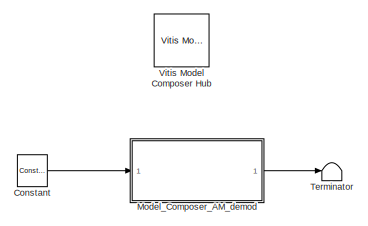
[diagram: root canvas - part 1/2, top left region]
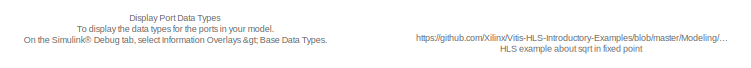
[diagram: root canvas - part 2/2, bottom right region]
MODEL slx_336abc414fbb
KIND model
CONFIG AbsTol = auto
CONFIG EnableMultiTasking = off
CONFIG FixedStep = auto
CONFIG MaxStep = auto
CONFIG MinStep = auto
CONFIG RelTol = 1e-3
CONFIG SampleTimeConstraint = Unconstrained
CONFIG SolverName = VariableStepAuto
CONFIG StartTime = 0.0
CONFIG StopTime = 20
BLOCK [Reference] Constant  REF=hlsBasic/Constant
  Ports = [0, 1]
  SourceBlock = hlsBasic/Constant
  SourceType = Constant
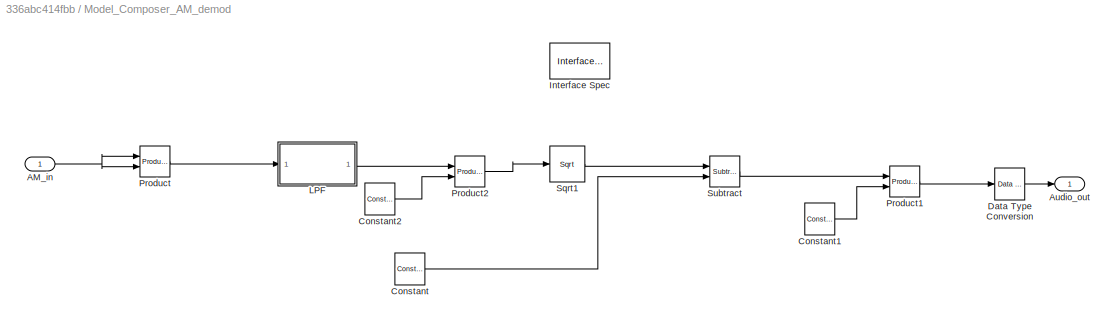
BLOCK [SubSystem] Model_Composer_AM_demod
  Ports = [1, 1]
  RequestExecContextInheritance = off
BLOCK [Inport] Model_Composer_AM_demod/AM_in
BLOCK [Outport] Model_Composer_AM_demod/Audio_out
BLOCK [Reference] Model_Composer_AM_demod/Constant  REF=hlsBasic/Constant
  Ports = [0, 1]
  SourceBlock = hlsBasic/Constant
  SourceType = Constant
BLOCK [Reference] Model_Composer_AM_demod/Constant1  REF=hlsBasic/Constant
  Ports = [0, 1]
  SourceBlock = hlsBasic/Constant
  SourceType = Constant
BLOCK [Reference] Model_Composer_AM_demod/Constant2  REF=hlsBasic/Constant
  Ports = [0, 1]
  SourceBlock = hlsBasic/Constant
  SourceType = Constant
BLOCK [Reference] Model_Composer_AM_demod/Data Type Conversion  REF=hlsBasic/Data Type Conversion
  Ports = [1, 1]
  SourceBlock = hlsBasic/Data Type Conversion
  SourceType = DTC
BLOCK [Reference] Model_Composer_AM_demod/Interface Spec  REF=hlsUtilities/Interface Spec
  Ports = []
  SourceBlock = hlsUtilities/Interface Spec
  SourceType = Interface Specification
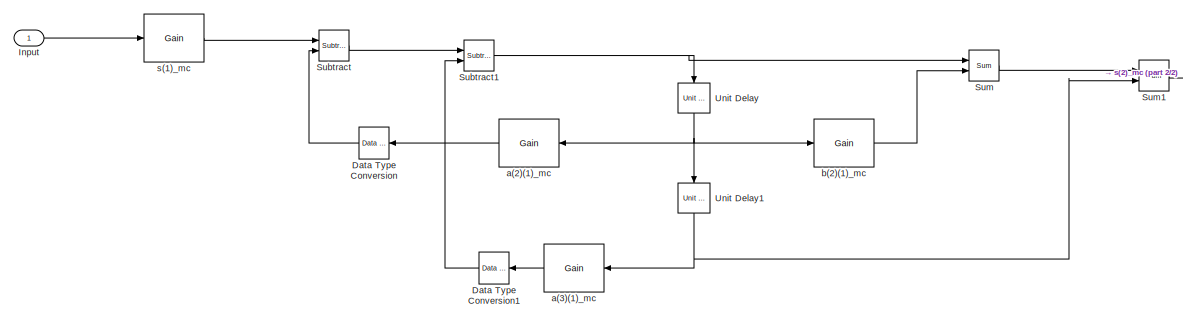
[diagram: Model_Composer_AM_demod/LPF - part 1/2, middle left region]
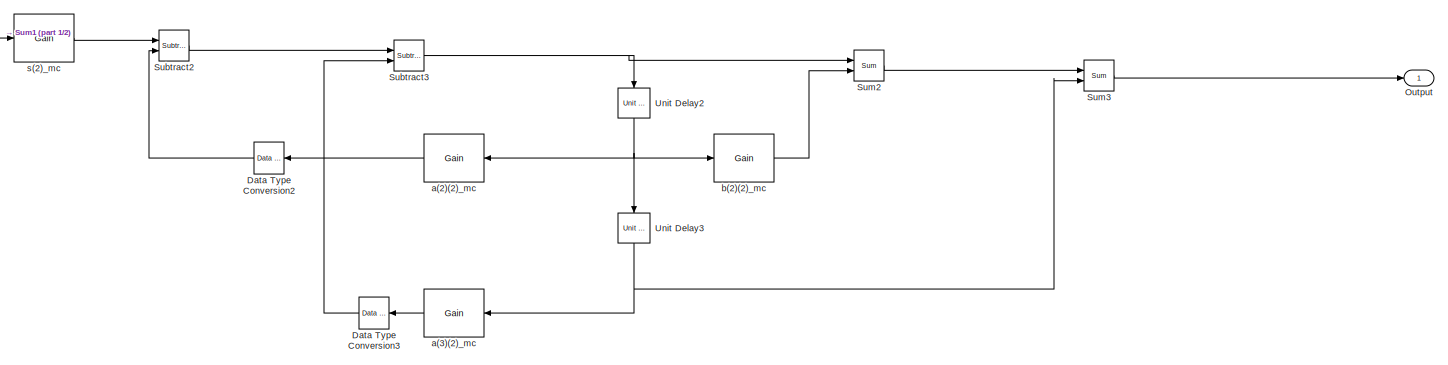
[diagram: Model_Composer_AM_demod/LPF - part 2/2, right side, full height]
BLOCK [SubSystem] Model_Composer_AM_demod/LPF
  ErrorFcn = dspFilterRealizedInBasicElemsAlgLoopErrFcnCallback
  Ports = [1, 1]
  RequestExecContextInheritance = off
  Tag = FilterWizardSubSystem
  UserDataPersistent = on
BLOCK [Reference] Model_Composer_AM_demod/LPF/Data Type Conversion  REF=hlsBasic/Data Type Conversion
  NameLocation = top
  Ports = [1, 1]
  SourceBlock = hlsBasic/Data Type Conversion
  SourceType = DTC
BLOCK [Reference] Model_Composer_AM_demod/LPF/Data Type Conversion1  REF=hlsBasic/Data Type Conversion
  NameLocation = top
  Ports = [1, 1]
  SourceBlock = hlsBasic/Data Type Conversion
  SourceType = DTC
BLOCK [Reference] Model_Composer_AM_demod/LPF/Data Type Conversion2  REF=hlsBasic/Data Type Conversion
  NameLocation = top
  Ports = [1, 1]
  SourceBlock = hlsBasic/Data Type Conversion
  SourceType = DTC
BLOCK [Reference] Model_Composer_AM_demod/LPF/Data Type Conversion3  REF=hlsBasic/Data Type Conversion
  NameLocation = top
  Ports = [1, 1]
  SourceBlock = hlsBasic/Data Type Conversion
  SourceType = DTC
BLOCK [Inport] Model_Composer_AM_demod/LPF/Input
BLOCK [Outport] Model_Composer_AM_demod/LPF/Output
BLOCK [Reference] Model_Composer_AM_demod/LPF/Subtract  REF=hlsBasic/Subtract
  Ports = [2, 1]
  SourceBlock = hlsBasic/Subtract
  SourceType = Subtract
BLOCK [Reference] Model_Composer_AM_demod/LPF/Subtract1  REF=hlsBasic/Subtract
  Ports = [2, 1]
  SourceBlock = hlsBasic/Subtract
  SourceType = Subtract
BLOCK [Reference] Model_Composer_AM_demod/LPF/Subtract2  REF=hlsBasic/Subtract
  Ports = [2, 1]
  SourceBlock = hlsBasic/Subtract
  SourceType = Subtract
BLOCK [Reference] Model_Composer_AM_demod/LPF/Subtract3  REF=hlsBasic/Subtract
  Ports = [2, 1]
  SourceBlock = hlsBasic/Subtract
  SourceType = Subtract
BLOCK [Reference] Model_Composer_AM_demod/LPF/Sum  REF=hlsBasic/Sum
  Ports = [2, 1]
  SourceBlock = hlsBasic/Sum
  SourceType = Sum
BLOCK [Reference] Model_Composer_AM_demod/LPF/Sum1  REF=hlsBasic/Sum
  Ports = [2, 1]
  SourceBlock = hlsBasic/Sum
  SourceType = Sum
BLOCK [Reference] Model_Composer_AM_demod/LPF/Sum2  REF=hlsBasic/Sum
  Ports = [2, 1]
  SourceBlock = hlsBasic/Sum
  SourceType = Sum
BLOCK [Reference] Model_Composer_AM_demod/LPF/Sum3  REF=hlsBasic/Sum
  Ports = [2, 1]
  SourceBlock = hlsBasic/Sum
  SourceType = Sum
BLOCK [Reference] Model_Composer_AM_demod/LPF/Unit Delay  REF=hlsBasic/Unit Delay
  NameLocation = left
  Ports = [1, 1]
  SourceBlock = hlsBasic/Unit Delay
  SourceType = Unit Delay
BLOCK [Reference] Model_Composer_AM_demod/LPF/Unit Delay1  REF=hlsBasic/Unit Delay
  NameLocation = left
  Ports = [1, 1]
  SourceBlock = hlsBasic/Unit Delay
  SourceType = Unit Delay
BLOCK [Reference] Model_Composer_AM_demod/LPF/Unit Delay2  REF=hlsBasic/Unit Delay
  NameLocation = left
  Ports = [1, 1]
  SourceBlock = hlsBasic/Unit Delay
  SourceType = Unit Delay
BLOCK [Reference] Model_Composer_AM_demod/LPF/Unit Delay3  REF=hlsBasic/Unit Delay
  NameLocation = left
  Ports = [1, 1]
  SourceBlock = hlsBasic/Unit Delay
  SourceType = Unit Delay
BLOCK [Reference] Model_Composer_AM_demod/LPF/a(2)(1)_mc  REF=hlsBasic/Gain
  NameLocation = top
  Ports = [1, 1]
  SourceBlock = hlsBasic/Gain
  SourceType = Gain
BLOCK [Reference] Model_Composer_AM_demod/LPF/a(2)(2)_mc  REF=hlsBasic/Gain
  NameLocation = top
  Ports = [1, 1]
  SourceBlock = hlsBasic/Gain
  SourceType = Gain
BLOCK [Reference] Model_Composer_AM_demod/LPF/a(3)(1)_mc  REF=hlsBasic/Gain
  NameLocation = top
  Ports = [1, 1]
  SourceBlock = hlsBasic/Gain
  SourceType = Gain
BLOCK [Reference] Model_Composer_AM_demod/LPF/a(3)(2)_mc  REF=hlsBasic/Gain
  NameLocation = top
  Ports = [1, 1]
  SourceBlock = hlsBasic/Gain
  SourceType = Gain
BLOCK [Reference] Model_Composer_AM_demod/LPF/b(2)(1)_mc  REF=hlsBasic/Gain
  Ports = [1, 1]
  SourceBlock = hlsBasic/Gain
  SourceType = Gain
BLOCK [Reference] Model_Composer_AM_demod/LPF/b(2)(2)_mc  REF=hlsBasic/Gain
  Ports = [1, 1]
  SourceBlock = hlsBasic/Gain
  SourceType = Gain
BLOCK [Reference] Model_Composer_AM_demod/LPF/s(1)_mc  REF=hlsBasic/Gain
  Ports = [1, 1]
  SourceBlock = hlsBasic/Gain
  SourceType = Gain
BLOCK [Reference] Model_Composer_AM_demod/LPF/s(2)_mc  REF=hlsBasic/Gain
  Ports = [1, 1]
  SourceBlock = hlsBasic/Gain
  SourceType = Gain
BLOCK [Reference] Model_Composer_AM_demod/Product  REF=hlsBasic/Product
  Ports = [2, 1]
  SourceBlock = hlsBasic/Product
  SourceType = Product
BLOCK [Reference] Model_Composer_AM_demod/Product1  REF=hlsBasic/Product
  Ports = [2, 1]
  SourceBlock = hlsBasic/Product
  SourceType = Product
BLOCK [Reference] Model_Composer_AM_demod/Product2  REF=hlsBasic/Product
  Ports = [2, 1]
  SourceBlock = hlsBasic/Product
  SourceType = Product
BLOCK [Reference] Model_Composer_AM_demod/Sqrt1  REF=hlsMath/Sqrt
  Ports = [1, 1]
  SourceBlock = hlsMath/Sqrt
  SourceType = Square Root
BLOCK [Reference] Model_Composer_AM_demod/Subtract  REF=hlsBasic/Subtract
  Ports = [2, 1]
  SourceBlock = hlsBasic/Subtract
  SourceType = Subtract
BLOCK [Terminator] Terminator
BLOCK [Reference] Vitis Model Composer Hub  REF=vmcUtilities/Vitis Model Composer Hub
  Ports = []
  SourceBlock = vmcUtilities/Vitis Model Composer Hub
  SourceType = Implementation
  Tag = genX
  UserDataPersistent = on
ANNOTATION (root): https://github.com/Xilinx/Vitis-HLS-Introductory-Examples/blob/master/Modeling/fixed_point_sqrt/README HLS example about sqrt in fixed point
ANNOTATION (root): D isplay Port Data Types To display the data types for the ports in your model. On the Simulink ® Debug tab, select Information Overlays > Base Data Types .
LINE Constant:1 -> Model_Composer_AM_demod:1
NET Model_Composer_AM_demod/AM_in:1 -> Model_Composer_AM_demod/Product:1, Model_Composer_AM_demod/Product:2
LINE Model_Composer_AM_demod/Constant1:1 -> Model_Composer_AM_demod/Product1:2
LINE Model_Composer_AM_demod/Constant2:1 -> Model_Composer_AM_demod/Product2:2
LINE Model_Composer_AM_demod/Constant:1 -> Model_Composer_AM_demod/Subtract:2
LINE Model_Composer_AM_demod/Data Type Conversion:1 -> Model_Composer_AM_demod/Audio_out:1
LINE Model_Composer_AM_demod/LPF/Data Type Conversion1:1 -> Model_Composer_AM_demod/LPF/Subtract1:2
LINE Model_Composer_AM_demod/LPF/Data Type Conversion2:1 -> Model_Composer_AM_demod/LPF/Subtract2:2
LINE Model_Composer_AM_demod/LPF/Data Type Conversion3:1 -> Model_Composer_AM_demod/LPF/Subtract3:2
LINE Model_Composer_AM_demod/LPF/Data Type Conversion:1 -> Model_Composer_AM_demod/LPF/Subtract:2
LINE Model_Composer_AM_demod/LPF/Input:1 -> Model_Composer_AM_demod/LPF/s(1)_mc:1
NET Model_Composer_AM_demod/LPF/Subtract1:1 -> Model_Composer_AM_demod/LPF/Sum:1, Model_Composer_AM_demod/LPF/Unit Delay:1
LINE Model_Composer_AM_demod/LPF/Subtract2:1 -> Model_Composer_AM_demod/LPF/Subtract3:1
NET Model_Composer_AM_demod/LPF/Subtract3:1 -> Model_Composer_AM_demod/LPF/Sum2:1, Model_Composer_AM_demod/LPF/Unit Delay2:1
LINE Model_Composer_AM_demod/LPF/Subtract:1 -> Model_Composer_AM_demod/LPF/Subtract1:1
LINE Model_Composer_AM_demod/LPF/Sum1:1 -> Model_Composer_AM_demod/LPF/s(2)_mc:1
LINE Model_Composer_AM_demod/LPF/Sum2:1 -> Model_Composer_AM_demod/LPF/Sum3:1
LINE Model_Composer_AM_demod/LPF/Sum3:1 -> Model_Composer_AM_demod/LPF/Output:1
LINE Model_Composer_AM_demod/LPF/Sum:1 -> Model_Composer_AM_demod/LPF/Sum1:1
NET Model_Composer_AM_demod/LPF/Unit Delay1:1 -> Model_Composer_AM_demod/LPF/Sum1:2, Model_Composer_AM_demod/LPF/a(3)(1)_mc:1
NET Model_Composer_AM_demod/LPF/Unit Delay2:1 -> Model_Composer_AM_demod/LPF/Unit Delay3:1, Model_Composer_AM_demod/LPF/a(2)(2)_mc:1, Model_Composer_AM_demod/LPF/b(2)(2)_mc:1
NET Model_Composer_AM_demod/LPF/Unit Delay3:1 -> Model_Composer_AM_demod/LPF/Sum3:2, Model_Composer_AM_demod/LPF/a(3)(2)_mc:1
NET Model_Composer_AM_demod/LPF/Unit Delay:1 -> Model_Composer_AM_demod/LPF/Unit Delay1:1, Model_Composer_AM_demod/LPF/a(2)(1)_mc:1, Model_Composer_AM_demod/LPF/b(2)(1)_mc:1
LINE Model_Composer_AM_demod/LPF/a(2)(1)_mc:1 -> Model_Composer_AM_demod/LPF/Data Type Conversion:1
LINE Model_Composer_AM_demod/LPF/a(2)(2)_mc:1 -> Model_Composer_AM_demod/LPF/Data Type Conversion2:1
LINE Model_Composer_AM_demod/LPF/a(3)(1)_mc:1 -> Model_Composer_AM_demod/LPF/Data Type Conversion1:1
LINE Model_Composer_AM_demod/LPF/a(3)(2)_mc:1 -> Model_Composer_AM_demod/LPF/Data Type Conversion3:1
LINE Model_Composer_AM_demod/LPF/b(2)(1)_mc:1 -> Model_Composer_AM_demod/LPF/Sum:2
LINE Model_Composer_AM_demod/LPF/b(2)(2)_mc:1 -> Model_Composer_AM_demod/LPF/Sum2:2
LINE Model_Composer_AM_demod/LPF/s(1)_mc:1 -> Model_Composer_AM_demod/LPF/Subtract:1
LINE Model_Composer_AM_demod/LPF/s(2)_mc:1 -> Model_Composer_AM_demod/LPF/Subtract2:1
LINE Model_Composer_AM_demod/LPF:1 -> Model_Composer_AM_demod/Product2:1
LINE Model_Composer_AM_demod/Product1:1 -> Model_Composer_AM_demod/Data Type Conversion:1
LINE Model_Composer_AM_demod/Product2:1 -> Model_Composer_AM_demod/Sqrt1:1
LINE Model_Composer_AM_demod/Product:1 -> Model_Composer_AM_demod/LPF:1
LINE Model_Composer_AM_demod/Sqrt1:1 -> Model_Composer_AM_demod/Subtract:1
LINE Model_Composer_AM_demod/Subtract:1 -> Model_Composer_AM_demod/Product1:1
LINE Model_Composer_AM_demod:1 -> Terminator:1
note: NET lines group one-source signal fan-out (src -> all destinations, sorted); 1:1 wires keep LINE
